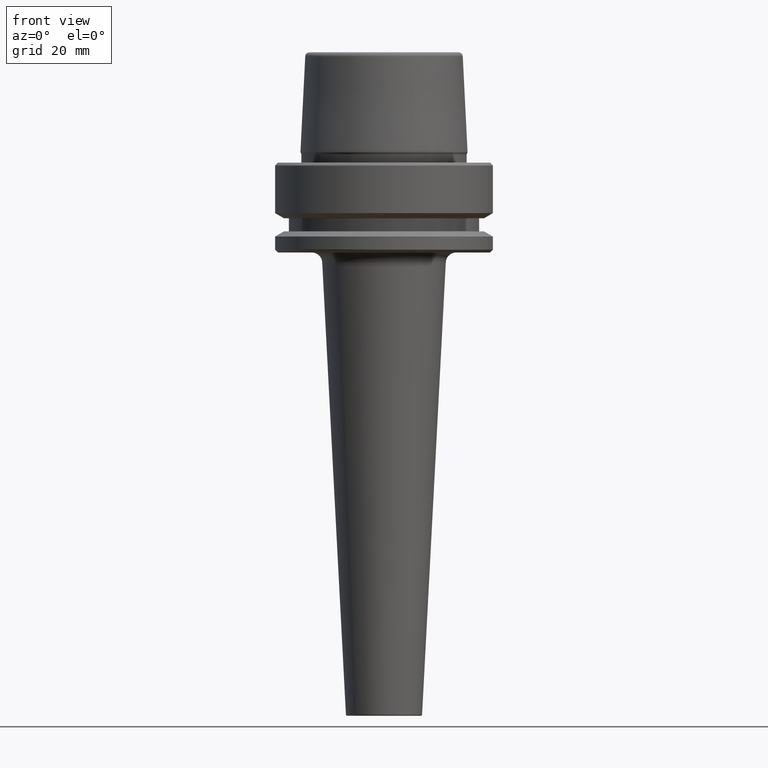
[diagram: clean part render]
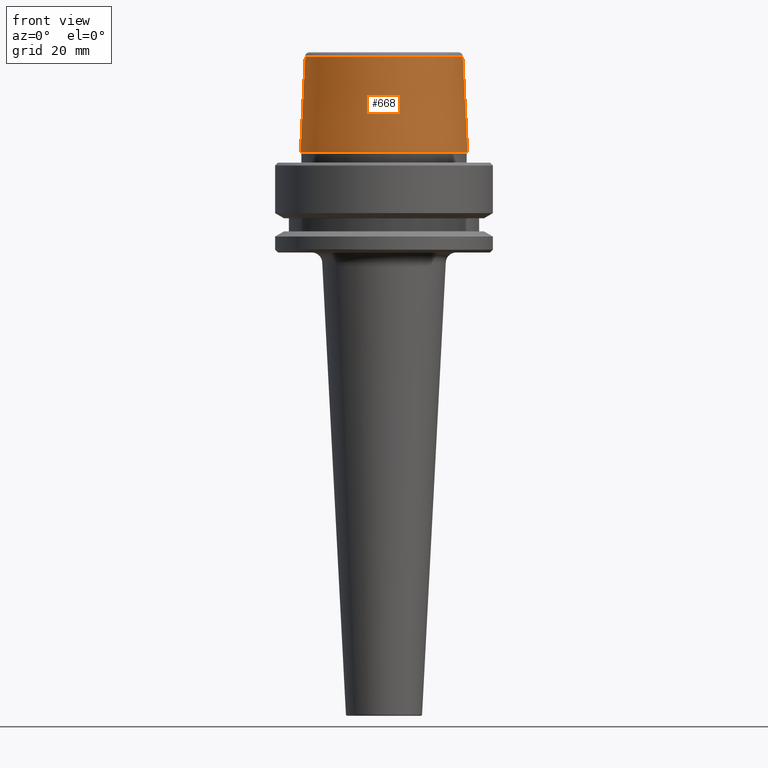
[diagram: same view with one face highlighted and labeled with its STEP entity id]
A machine part, front view. The second image highlights one B-rep face of the part: STEP entity #668.
In plain terms, the highlighted conical surface has half-angle 2.868 deg.
Its self-contained STEP definition (entity closure, byte-faithful):
#25 = CARTESIAN_POINT ( 'NONE',  ( -24.17032625081241900, 2.960011267740467600E-015, 3.000000000000002700 ) ) ;
#60 = DIRECTION ( 'NONE',  ( 0.0000000000000000000, 0.0000000000000000000, -1.000000000000000000 ) ) ;
#107 = ORIENTED_EDGE ( 'NONE', *, *, #1237, .T. ) ;
#210 = DIRECTION ( 'NONE',  ( 1.000000000000000000, 0.0000000000000000000, 0.0000000000000000000 ) ) ;
#213 = VERTEX_POINT ( 'NONE', #1167 ) ;
#219 = ORIENTED_EDGE ( 'NONE', *, *, #1149, .F. ) ;
#221 = AXIS2_PLACEMENT_3D ( 'NONE', #1029, #60, #1061 ) ;
#244 = CARTESIAN_POINT ( 'NONE',  ( 0.0000000000000000000, 0.0000000000000000000, 3.000000000000002700 ) ) ;
#285 = AXIS2_PLACEMENT_3D ( 'NONE', #1247, #475, #210 ) ;
#310 = AXIS2_PLACEMENT_3D ( 'NONE', #244, #945, #1007 ) ;
#340 = DIRECTION ( 'NONE',  ( -0.05003611051310812000, 0.0000000000000000000, -0.9987474093306675200 ) ) ;
#374 = CIRCLE ( 'NONE', #285, 22.77957961851797100 ) ;
#400 = DIRECTION ( 'NONE',  ( 0.05003611051310812000, 6.127656258166108900E-018, -0.9987474093306675200 ) ) ;
#452 = FACE_OUTER_BOUND ( 'NONE', #606, .T. ) ;
#475 = DIRECTION ( 'NONE',  ( -0.0000000000000000000, -0.0000000000000000000, 1.000000000000000000 ) ) ;
#492 = CARTESIAN_POINT ( 'NONE',  ( 22.77957961851797100, 2.874852597157249900E-015, 30.76004333261571900 ) ) ;
#517 = CONICAL_SURFACE ( 'NONE', #221, 24.17032625081241900, 0.05005701257456005000 ) ;
#537 = VERTEX_POINT ( 'NONE', #649 ) ;
#538 = CARTESIAN_POINT ( 'NONE',  ( 24.17032625081241900, 2.960011267740467600E-015, 3.000000000000002700 ) ) ;
#594 = VERTEX_POINT ( 'NONE', #25 ) ;
#606 = EDGE_LOOP ( 'NONE', ( #219, #834, #687, #107 ) ) ;
#649 = CARTESIAN_POINT ( 'NONE',  ( 24.17032625081241900, 0.0000000000000000000, 3.000000000000002700 ) ) ;
#668 = ADVANCED_FACE ( 'NONE', ( #452 ), #517, .T. ) ;
#687 = ORIENTED_EDGE ( 'NONE', *, *, #876, .T. ) ;
#740 = EDGE_CURVE ( 'NONE', #213, #1156, #374, .T. ) ;
#778 = VECTOR ( 'NONE', #400, 1000.000000000000200 ) ;
#834 = ORIENTED_EDGE ( 'NONE', *, *, #740, .F. ) ;
#876 = EDGE_CURVE ( 'NONE', #213, #594, #1038, .T. ) ;
#882 = LINE ( 'NONE', #538, #778 ) ;
#899 = CARTESIAN_POINT ( 'NONE',  ( -24.17032625081241900, 0.0000000000000000000, 3.000000000000002700 ) ) ;
#945 = DIRECTION ( 'NONE',  ( -0.0000000000000000000, -0.0000000000000000000, 1.000000000000000000 ) ) ;
#1007 = DIRECTION ( 'NONE',  ( 1.000000000000000000, 0.0000000000000000000, 0.0000000000000000000 ) ) ;
#1029 = CARTESIAN_POINT ( 'NONE',  ( 0.0000000000000000000, 0.0000000000000000000, 3.000000000000002700 ) ) ;
#1038 = LINE ( 'NONE', #899, #1227 ) ;
#1061 = DIRECTION ( 'NONE',  ( -1.000000000000000000, 0.0000000000000000000, 0.0000000000000000000 ) ) ;
#1149 = EDGE_CURVE ( 'NONE', #1156, #537, #882, .T. ) ;
#1153 = CIRCLE ( 'NONE', #310, 24.17032625081241900 ) ;
#1156 = VERTEX_POINT ( 'NONE', #492 ) ;
#1167 = CARTESIAN_POINT ( 'NONE',  ( -22.77957961851797100, 0.0000000000000000000, 30.76004333261571900 ) ) ;
#1227 = VECTOR ( 'NONE', #340, 1000.000000000000200 ) ;
#1237 = EDGE_CURVE ( 'NONE', #594, #537, #1153, .T. ) ;
#1247 = CARTESIAN_POINT ( 'NONE',  ( 0.0000000000000000000, 0.0000000000000000000, 30.76004333261571900 ) ) ;